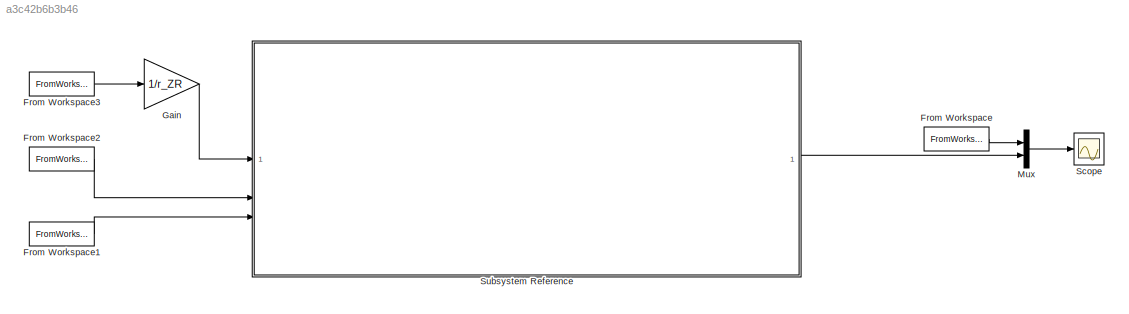
MODEL slx_a3c42b6b3b46
KIND model
CONFIG AbsTol = auto
CONFIG EnableMultiTasking = off
CONFIG FixedStep = auto
CONFIG MaxStep = auto
CONFIG MinStep = auto
CONFIG RelTol = 1e-3
CONFIG SampleTimeConstraint = Unconstrained
CONFIG SolverName = VariableStepAuto
CONFIG StartTime = 0.0
CONFIG StopTime = 10.0
BLOCK [FromWorkspace] From Workspace
  VariableName = [Zeit i_A]
BLOCK [FromWorkspace] From Workspace1
  VariableName = simin
BLOCK [FromWorkspace] From Workspace2
  VariableName = simin
BLOCK [FromWorkspace] From Workspace3
  VariableName = simin
BLOCK [Gain] Gain
  Gain = 1/r_ZR
BLOCK [Mux] Mux
  DisplayOption = bar
  Inputs = 2
BLOCK [Scope] Scope
  Floating = off
  NumInputPorts = 1
  ScopeSpecificationString = Simulink.scopes.TimeScopeBlockCfg('CurrentConfiguration', extmgr.ConfigurationSet(extmgr.Configuration('Core','General UI',true),extmgr.Configuration('Core','Source UI',true),extmgr.Configuration('Sources','WiredSimulink',true,'DataLoggingVariableName','ScopeData1'),extmgr.Configuration('Visuals','Time Domain',true),extmgr.Configuration('Tools','Plot Navigation',true),extmgr.Configuration('Tools',...<+40ch>
BLOCK [SubSystem] Subsystem Reference
  ReferencedSubsystem = V4_Modell_EM
LINE From Workspace1:1 -> Subsystem Reference:3
LINE From Workspace2:1 -> Subsystem Reference:2
LINE From Workspace3:1 -> Gain:1
LINE From Workspace:1 -> Mux:1
LINE Gain:1 -> Subsystem Reference:1
LINE Mux:1 -> Scope:1
LINE Subsystem Reference:1 -> Mux:2
